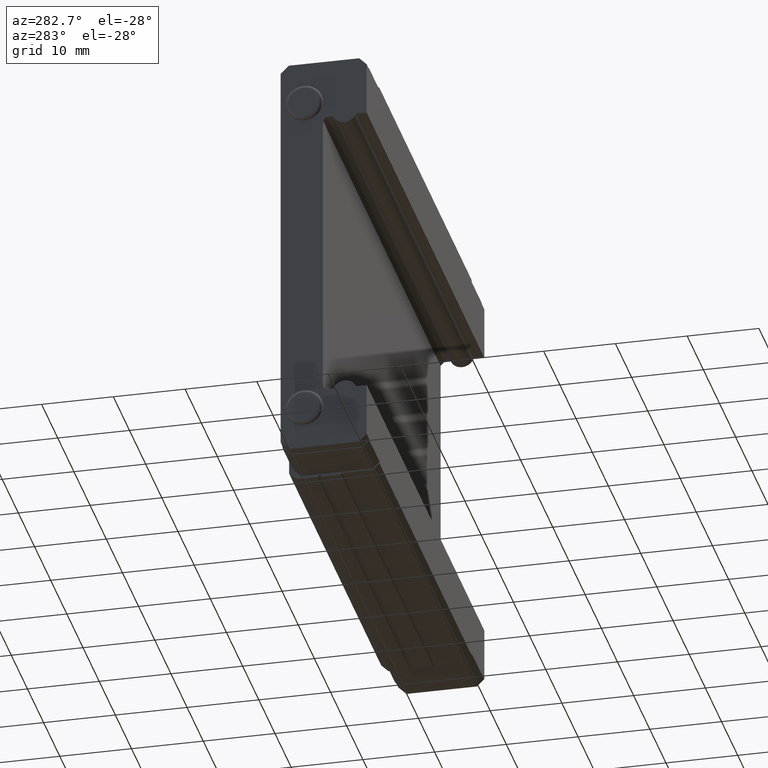
[diagram: clean part render]
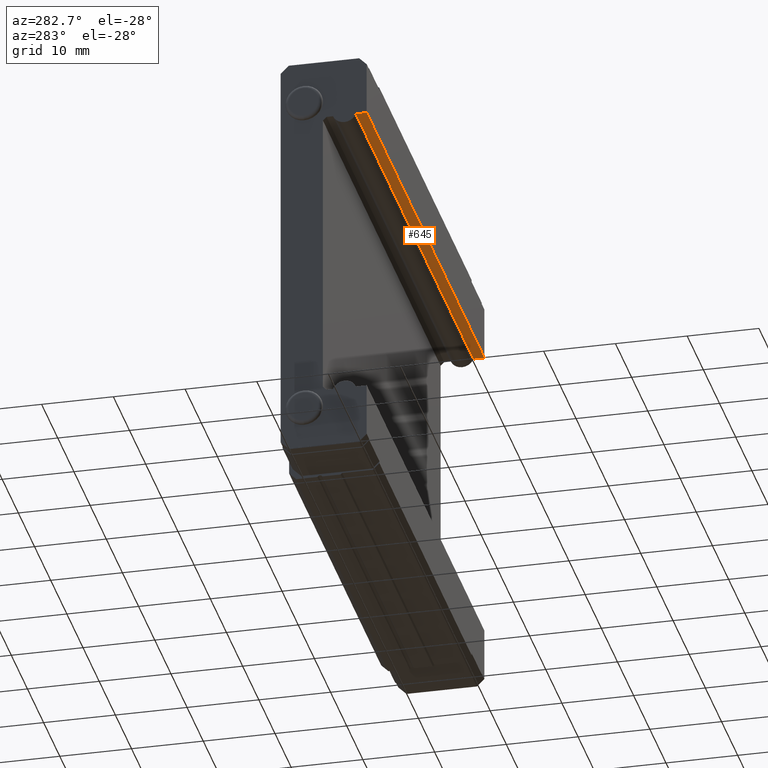
[diagram: same view with one face highlighted and labeled with its STEP entity id]
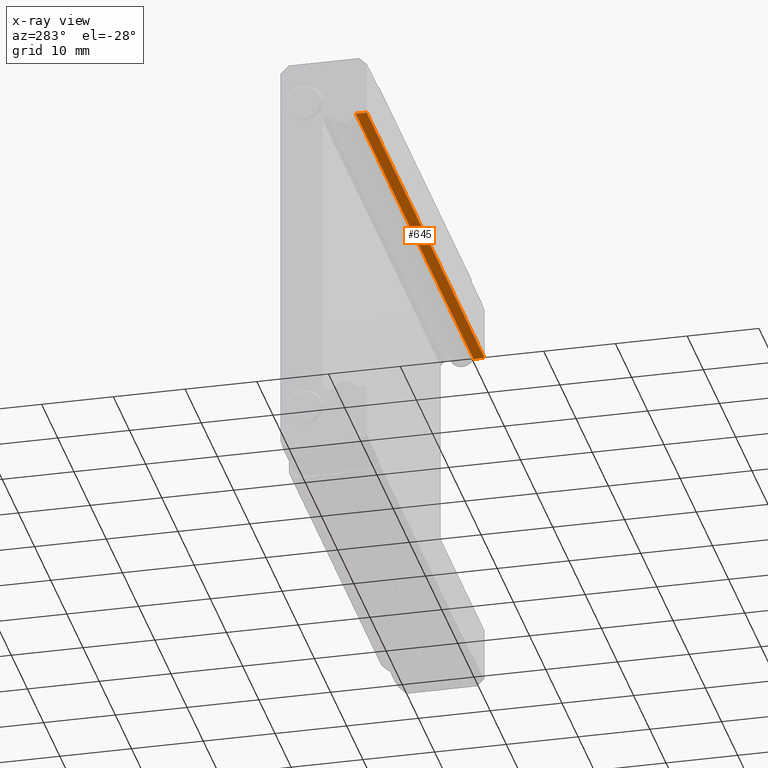
[diagram: x-ray of the same camera — body ghosted, the highlighted face saturated]
A machine part, auxiliary view. The second image highlights one B-rep face of the part: STEP entity #645.
The next image is the same camera in x-ray: the body ghosted, the highlighted face saturated — about 0% of this face is hidden behind the body in this view.
In plain terms, the highlighted planar face has unit normal (0, -0, 1).
Its self-contained STEP definition (entity closure, byte-faithful):
#330 = VERTEX_POINT ( 'NONE', #1381 ) ;
#505 = VERTEX_POINT ( 'NONE', #1640 ) ;
#526 = EDGE_CURVE ( 'NONE', #505, #330, #1673, .T. ) ;
#637 = EDGE_CURVE ( 'NONE', #874, #505, #1899, .T. ) ;
#643 = EDGE_LOOP ( 'NONE', ( #644, #672, #673, #666 ) ) ;
#644 = ORIENTED_EDGE ( 'NONE', *, *, #637, .T. ) ;
#645 = ADVANCED_FACE ( 'NONE', ( #1886 ), #1885, .F. ) ;
#666 = ORIENTED_EDGE ( 'NONE', *, *, #826, .F. ) ;
#671 = EDGE_CURVE ( 'NONE', #866, #330, #1969, .T. ) ;
#672 = ORIENTED_EDGE ( 'NONE', *, *, #526, .T. ) ;
#673 = ORIENTED_EDGE ( 'NONE', *, *, #671, .F. ) ;
#826 = EDGE_CURVE ( 'NONE', #874, #866, #2254, .T. ) ;
#866 = VERTEX_POINT ( 'NONE', #2298 ) ;
#874 = VERTEX_POINT ( 'NONE', #2347 ) ;
#1381 = CARTESIAN_POINT ( 'NONE',  ( -36.39999999999999100, 1.517091285007247500, 21.00000000000000400 ) ) ;
#1640 = CARTESIAN_POINT ( 'NONE',  ( -36.39999999999999100, -1.653408313040394300E-015, 21.00000000000000000 ) ) ;
#1670 = DIRECTION ( 'NONE',  ( 0.0000000000000000000, 1.000000000000000000, 2.286907179706747700E-015 ) ) ;
#1671 = VECTOR ( 'NONE', #1670, 1000.000000000000000 ) ;
#1672 = CARTESIAN_POINT ( 'NONE',  ( -36.39999999999999100, -1.653408313040394300E-015, 21.00000000000000000 ) ) ;
#1673 = LINE ( 'NONE', #1672, #1671 ) ;
#1881 = DIRECTION ( 'NONE',  ( 0.0000000000000000000, -1.000000000000000000, -2.286907179706747300E-015 ) ) ;
#1882 = DIRECTION ( 'NONE',  ( 0.0000000000000000000, -2.286907179706747300E-015, 1.000000000000000000 ) ) ;
#1883 = CARTESIAN_POINT ( 'NONE',  ( 28.50000000000000000, -1.653218577660209700E-015, 21.00000000000000000 ) ) ;
#1884 = AXIS2_PLACEMENT_3D ( 'NONE', #1883, #1882, #1881 ) ;
#1885 = PLANE ( 'NONE',  #1884 ) ;
#1886 = FACE_OUTER_BOUND ( 'NONE', #643, .T. ) ;
#1896 = DIRECTION ( 'NONE',  ( -1.000000000000000000, 0.0000000000000000000, 0.0000000000000000000 ) ) ;
#1897 = VECTOR ( 'NONE', #1896, 1000.000000000000000 ) ;
#1898 = CARTESIAN_POINT ( 'NONE',  ( 28.50000000000000000, -1.653218577660209700E-015, 21.00000000000000000 ) ) ;
#1899 = LINE ( 'NONE', #1898, #1897 ) ;
#1966 = DIRECTION ( 'NONE',  ( -1.000000000000000000, 0.0000000000000000000, 0.0000000000000000000 ) ) ;
#1967 = VECTOR ( 'NONE', #1966, 1000.000000000000000 ) ;
#1968 = CARTESIAN_POINT ( 'NONE',  ( 28.50000000000000000, 1.517091285007247500, 21.00000000000000400 ) ) ;
#1969 = LINE ( 'NONE', #1968, #1967 ) ;
#2251 = DIRECTION ( 'NONE',  ( 0.0000000000000000000, 1.000000000000000000, 2.286907179706747700E-015 ) ) ;
#2252 = VECTOR ( 'NONE', #2251, 1000.000000000000000 ) ;
#2253 = CARTESIAN_POINT ( 'NONE',  ( 36.39999999999999100, -1.653408313040394300E-015, 21.00000000000000000 ) ) ;
#2254 = LINE ( 'NONE', #2253, #2252 ) ;
#2298 = CARTESIAN_POINT ( 'NONE',  ( 36.39999999999999100, 1.517091285007247500, 21.00000000000000400 ) ) ;
#2347 = CARTESIAN_POINT ( 'NONE',  ( 36.39999999999999100, -1.653408313040394300E-015, 21.00000000000000000 ) ) ;